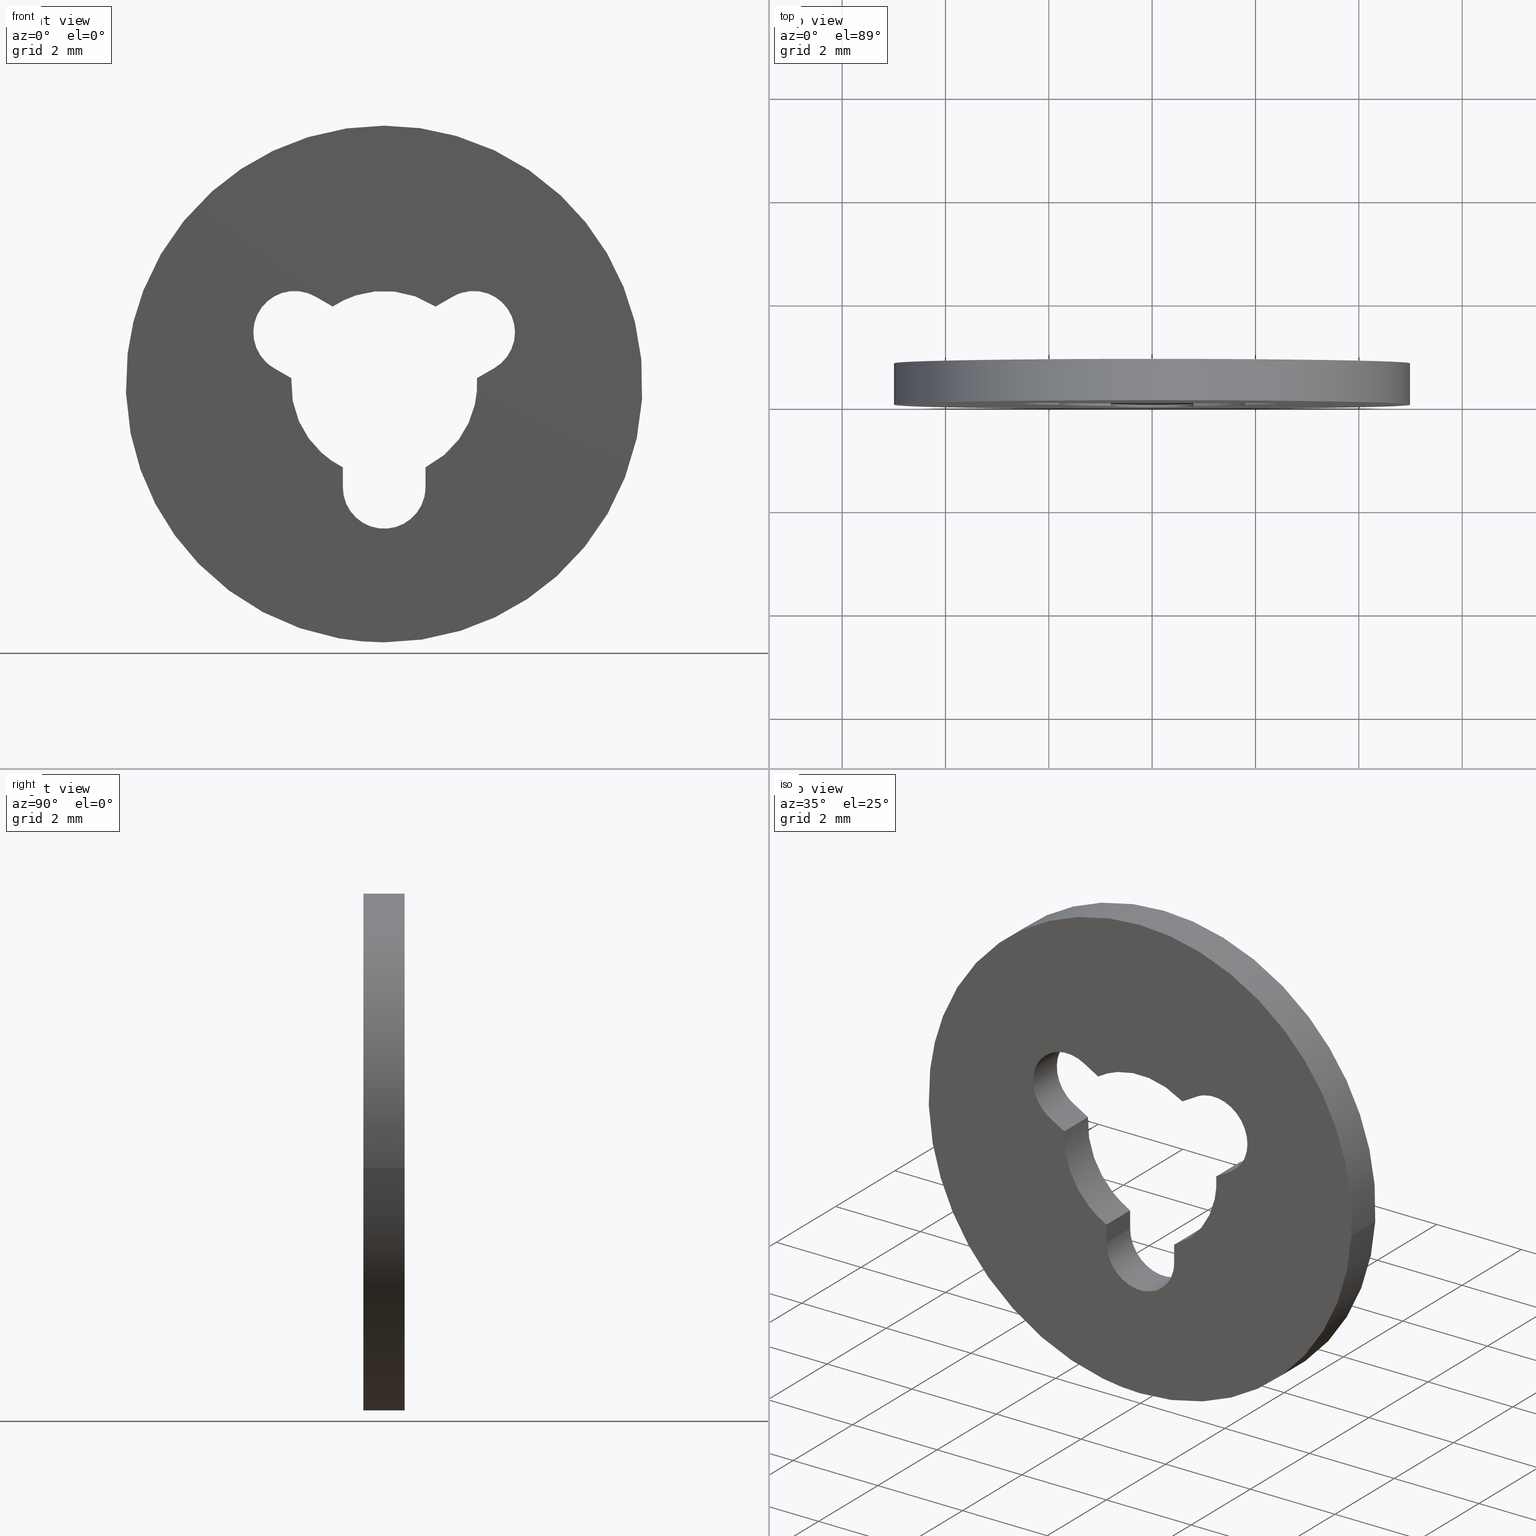
[diagram: canonical four-view strip — front | top / right | iso, engineering-drawing reading convention]
A machine part, canonical four-view strip (front | top / right | iso — engineering-drawing reading convention). The complete STEP part file that produces these views, byte-faithful:
ISO-10303-21;
HEADER;
/****************************************************************
 * Generated by software with PDE/Lib inside                    *
 * PDElib Version 4.4.1-0003, patched  Thursday August 19 11:58 *
 * International Technegroup Inc. (www.iti-oh.com)              *
 ****************************************************************/
FILE_DESCRIPTION((''),'2;1');
FILE_NAME('','2005-07-15T17:45:21',(''),(''),'','CADfix','');
FILE_SCHEMA(('AUTOMOTIVE_DESIGN'));
ENDSEC;
DATA;
#5=APPLICATION_CONTEXT('automotive design');
#6=APPLICATION_PROTOCOL_DEFINITION('Draft International Standard','automotive_design',1998,#5);
#7=PRODUCT_CONTEXT('None',#5,'mechanical');
#8=PRODUCT('washer','','None',(#7));
#9=PRODUCT_RELATED_PRODUCT_CATEGORY('part','description',(#8));
#10=PRODUCT_DEFINITION_FORMATION('None','None',#8);
#11=PRODUCT_DEFINITION_CONTEXT('part definition',#5,'design');
#12=PRODUCT_DEFINITION('None','None',#10,#11);
#18=(NAMED_UNIT(*)PLANE_ANGLE_UNIT()SI_UNIT($,.RADIAN.));
#19=DIMENSIONAL_EXPONENTS(0.0,0.0,0.0,0.0,0.0,0.0,0.0);
#20=PLANE_ANGLE_MEASURE_WITH_UNIT(PLANE_ANGLE_MEASURE(0.017453292500000),#18);
#24=(CONVERSION_BASED_UNIT('DEGREE',#20)NAMED_UNIT(#19)PLANE_ANGLE_UNIT());
#28=(NAMED_UNIT(*)SI_UNIT($,.STERADIAN.)SOLID_ANGLE_UNIT());
#32=(LENGTH_UNIT()NAMED_UNIT(*)SI_UNIT(.MILLI.,.METRE.));
#34=UNCERTAINTY_MEASURE_WITH_UNIT(LENGTH_MEASURE(0.001000000000000),#32,'DISTANCE_ACCURACY_VALUE','');
#36=(GEOMETRIC_REPRESENTATION_CONTEXT(3)GLOBAL_UNCERTAINTY_ASSIGNED_CONTEXT((#34))GLOBAL_UNIT_ASSIGNED_CONTEXT((#24,#28,#32))REPRESENTATION_CONTEXT('None','None'));
#37=AXIS2_PLACEMENT_3D('',#38,#39,#40);
#38=CARTESIAN_POINT('',(0.0,0.0,0.0));
#39=DIRECTION('',(0.0,0.0,1.0));
#40=DIRECTION('',(1.0,0.0,0.0));
#41=ADVANCED_BREP_SHAPE_REPRESENTATION('',(#37,#805),#36);
#42=PRODUCT_DEFINITION_SHAPE('','',#12);
#43=SHAPE_DEFINITION_REPRESENTATION(#42,#41);
#44=CARTESIAN_POINT('',(-4.965047631818332,0.820000000000024,0.590171173283792));
#45=CARTESIAN_POINT('',(-4.981938077243028,0.820000000000024,0.448073643189888));
#46=CARTESIAN_POINT('',(-4.990673992109334,0.820000000000024,0.305242697674285));
#47=CARTESIAN_POINT('',(-5.295916689783620,0.820000000000024,-4.685431294435048));
#48=CARTESIAN_POINT('',(-0.305242697674285,0.820000000000024,-4.990673992109334));
#49=CARTESIAN_POINT('',(4.685431294435048,0.820000000000024,-5.295916689783620));
#50=CARTESIAN_POINT('',(4.990673992109334,0.820000000000024,-0.305242697674285));
#51=CARTESIAN_POINT('',(-4.965047631818332,-0.020500000000001,0.590171173283792));
#52=CARTESIAN_POINT('',(-4.981938077243028,-0.020500000000001,0.448073643189888));
#53=CARTESIAN_POINT('',(-4.990673992109334,-0.020500000000001,0.305242697674285));
#54=CARTESIAN_POINT('',(-5.295916689783620,-0.020500000000001,-4.685431294435048));
#55=CARTESIAN_POINT('',(-0.305242697674285,-0.020500000000001,-4.990673992109334));
#56=CARTESIAN_POINT('',(4.685431294435048,-0.020500000000001,-5.295916689783620));
#57=CARTESIAN_POINT('',(4.990673992109334,-0.020500000000001,-0.305242697674285));
#65=(BOUNDED_SURFACE()B_SPLINE_SURFACE(2,1,((#44,#51),(#45,#52),(#46,#53),(#47,#54),(#48,#55),(#49,#56),(#50,#57)),.UNSPECIFIED.,.F.,.F.,.U.)B_SPLINE_SURFACE_WITH_KNOTS((3,2,2,3),(2,2),(0.0,0.331370849898476,8.615642097360375,16.899913344822270),(0.0,1.0),.UNSPECIFIED.)GEOMETRIC_REPRESENTATION_ITEM()RATIONAL_B_SPLINE_SURFACE(((0.977505800795127,0.977505800795127),(0.988284271247462,0.988284271247462),(1.0,1.0),(0.707106781186548,0.707106781186548),(1.0,1.0),(0.707106781186548,0.707106781186548),(1.0,1.0)))REPRESENTATION_ITEM('')SURFACE());
#66=CARTESIAN_POINT('',(-4.965048007634929,3.045997E-014,0.590168011561354));
#67=VERTEX_POINT('',#66);
#68=CARTESIAN_POINT('',(0.0,0.0,-5.0));
#69=VERTEX_POINT('',#68);
#70=CARTESIAN_POINT('',(-4.965048007634929,3.045997E-014,0.590168011561354));
#71=CARTESIAN_POINT('',(-5.000000000000001,0.0,0.296119000685819));
#72=CARTESIAN_POINT('',(-5.0,0.0,0.0));
#73=CARTESIAN_POINT('',(-5.000000000000001,0.0,-5.000000000000001));
#74=CARTESIAN_POINT('',(0.0,0.0,-5.0));
#82=(BOUNDED_CURVE()B_SPLINE_CURVE(2,(#70,#71,#72,#73,#74),.UNSPECIFIED.,.F.,.U.)B_SPLINE_CURVE_WITH_KNOTS((3,2,3),(0.229562581136241,0.250000000000000,0.500000000000000),.UNSPECIFIED.)CURVE()GEOMETRIC_REPRESENTATION_ITEM()RATIONAL_B_SPLINE_CURVE((0.956026965128767,0.976056074419019,1.0,0.707106781186548,1.0))REPRESENTATION_ITEM(''));
#83=EDGE_CURVE('',#67,#69,#82,.T.);
#84=ORIENTED_EDGE('',*,*,#83,.F.);
#85=CARTESIAN_POINT('',(-4.965048002999415,0.800000000000023,0.590168050559857));
#86=VERTEX_POINT('',#85);
#87=CARTESIAN_POINT('',(-4.965048002999415,0.800000000000023,0.590168050559857));
#88=CARTESIAN_POINT('',(-4.965048007634929,3.045997E-014,0.590168011561354));
#89=QUASI_UNIFORM_CURVE('',1,(#87,#88),.UNSPECIFIED.,.F.,.U.);
#90=EDGE_CURVE('',#86,#67,#89,.T.);
#91=ORIENTED_EDGE('',*,*,#90,.F.);
#92=CARTESIAN_POINT('',(0.0,0.800000000000023,-5.0));
#93=VERTEX_POINT('',#92);
#94=CARTESIAN_POINT('',(-4.965048002999415,0.800000000000023,0.590168050559856));
#95=CARTESIAN_POINT('',(-5.0,0.800000000000023,0.296119020391210));
#96=CARTESIAN_POINT('',(-5.0,0.800000000000023,0.0));
#97=CARTESIAN_POINT('',(-5.000000000000001,0.800000000000023,-5.000000000000001));
#98=CARTESIAN_POINT('',(0.0,0.800000000000023,-5.0));
#106=(BOUNDED_CURVE()B_SPLINE_CURVE(2,(#94,#95,#96,#97,#98),.UNSPECIFIED.,.F.,.U.)B_SPLINE_CURVE_WITH_KNOTS((3,2,3),(0.229562579808786,0.250000000000000,0.500000000000000),.UNSPECIFIED.)CURVE()GEOMETRIC_REPRESENTATION_ITEM()RATIONAL_B_SPLINE_CURVE((0.956026962526900,0.976056072863809,1.0,0.707106781186548,1.0))REPRESENTATION_ITEM(''));
#107=EDGE_CURVE('',#86,#93,#106,.T.);
#108=ORIENTED_EDGE('',*,*,#107,.T.);
#109=CARTESIAN_POINT('',(4.990674099992546,0.800000000000023,-0.305240933789139));
#110=VERTEX_POINT('',#109);
#111=CARTESIAN_POINT('',(0.0,0.800000000000023,-5.0));
#112=CARTESIAN_POINT('',(4.703532000033385,0.800000000000023,-5.000000000000001));
#113=CARTESIAN_POINT('',(4.990674099992546,0.800000000000023,-0.305240933789139));
#121=(BOUNDED_CURVE()B_SPLINE_CURVE(2,(#111,#112,#113),.UNSPECIFIED.,.F.,.U.)B_SPLINE_CURVE_WITH_KNOTS((3,3),(0.500000000000000,0.739333023226263),.UNSPECIFIED.)CURVE()GEOMETRIC_REPRESENTATION_ITEM()RATIONAL_B_SPLINE_CURVE((1.0,0.719603921835620,0.976072172374189))REPRESENTATION_ITEM(''));
#122=EDGE_CURVE('',#93,#110,#121,.T.);
#123=ORIENTED_EDGE('',*,*,#122,.T.);
#124=CARTESIAN_POINT('',(4.990674101339240,2.014708E-014,-0.305240911770624));
#125=VERTEX_POINT('',#124);
#126=CARTESIAN_POINT('',(4.990674099992546,0.800000000000023,-0.305240933789139));
#127=CARTESIAN_POINT('',(4.990674101339240,2.014708E-014,-0.305240911770624));
#128=QUASI_UNIFORM_CURVE('',1,(#126,#127),.UNSPECIFIED.,.F.,.U.);
#129=EDGE_CURVE('',#110,#125,#128,.T.);
#130=ORIENTED_EDGE('',*,*,#129,.T.);
#131=CARTESIAN_POINT('',(0.0,0.0,-5.0));
#132=CARTESIAN_POINT('',(4.703532020823824,0.0,-4.999999999999999));
#133=CARTESIAN_POINT('',(4.990674101339240,2.014708E-014,-0.305240911770624));
#141=(BOUNDED_CURVE()B_SPLINE_CURVE(2,(#131,#132,#133),.UNSPECIFIED.,.F.,.U.)B_SPLINE_CURVE_WITH_KNOTS((3,3),(0.500000000000000,0.739333023987528),.UNSPECIFIED.)CURVE()GEOMETRIC_REPRESENTATION_ITEM()RATIONAL_B_SPLINE_CURVE((1.0,0.719603920943743,0.976072174005725))REPRESENTATION_ITEM(''));
#142=EDGE_CURVE('',#69,#125,#141,.T.);
#143=ORIENTED_EDGE('',*,*,#142,.F.);
#144=EDGE_LOOP('',(#84,#91,#108,#123,#130,#143));
#145=FACE_OUTER_BOUND('',#144,.T.);
#146=ADVANCED_FACE('',(#145),#65,.T.);
#147=CARTESIAN_POINT('',(4.990673992109334,0.820000000000024,-0.305242697674285));
#148=CARTESIAN_POINT('',(5.295916689783620,0.820000000000024,4.685431294435048));
#149=CARTESIAN_POINT('',(0.305242697674285,0.820000000000024,4.990673992109334));
#150=CARTESIAN_POINT('',(-4.407717454197504,0.820000000000024,5.278930983662638));
#151=CARTESIAN_POINT('',(-4.965047631818332,0.820000000000024,0.590171173283792));
#152=CARTESIAN_POINT('',(4.990673992109334,-0.020500000000001,-0.305242697674285));
#153=CARTESIAN_POINT('',(5.295916689783620,-0.020500000000001,4.685431294435048));
#154=CARTESIAN_POINT('',(0.305242697674285,-0.020500000000001,4.990673992109334));
#155=CARTESIAN_POINT('',(-4.407717454197504,-0.020500000000001,5.278930983662638));
#156=CARTESIAN_POINT('',(-4.965047631818332,-0.020500000000001,0.590171173283792));
#164=(BOUNDED_SURFACE()B_SPLINE_SURFACE(2,1,((#147,#152),(#148,#153),(#149,#154),(#150,#155),(#151,#156)),.UNSPECIFIED.,.F.,.F.,.U.)B_SPLINE_SURFACE_WITH_KNOTS((3,2,3),(2,2),(0.0,8.284271247461899,16.237171645025320),(0.0,1.0),.UNSPECIFIED.)GEOMETRIC_REPRESENTATION_ITEM()RATIONAL_B_SPLINE_SURFACE(((1.0,1.0),(0.707106781186548,0.707106781186548),(1.0,1.0),(0.718822509939086,0.718822509939086),(0.977505800795127,0.977505800795127)))REPRESENTATION_ITEM('')SURFACE());
#165=CARTESIAN_POINT('',(0.0,0.0,5.0));
#166=VERTEX_POINT('',#165);
#167=CARTESIAN_POINT('',(0.0,0.0,5.0));
#168=CARTESIAN_POINT('',(-4.440875477595059,0.0,5.000000000000001));
#169=CARTESIAN_POINT('',(-4.965048007634929,3.045997E-014,0.590168011561354));
#177=(BOUNDED_CURVE()B_SPLINE_CURVE(2,(#167,#168,#169),.UNSPECIFIED.,.F.,.U.)B_SPLINE_CURVE_WITH_KNOTS((3,3),(0.0,0.229562581136241),.UNSPECIFIED.)CURVE()GEOMETRIC_REPRESENTATION_ITEM()RATIONAL_B_SPLINE_CURVE((1.0,0.731050706767529,0.956026965128767))REPRESENTATION_ITEM(''));
#178=EDGE_CURVE('',#166,#67,#177,.T.);
#179=ORIENTED_EDGE('',*,*,#178,.F.);
#180=CARTESIAN_POINT('',(4.990674101339240,2.014708E-014,-0.305240911770624));
#181=CARTESIAN_POINT('',(5.000000000000001,0.0,-0.152762921037389));
#182=CARTESIAN_POINT('',(5.0,0.0,0.0));
#183=CARTESIAN_POINT('',(5.000000000000001,0.0,5.000000000000001));
#184=CARTESIAN_POINT('',(0.0,0.0,5.0));
#192=(BOUNDED_CURVE()B_SPLINE_CURVE(2,(#180,#181,#182,#183,#184),.UNSPECIFIED.,.F.,.U.)B_SPLINE_CURVE_WITH_KNOTS((3,2,3),(0.739333023987528,0.750000000000000,1.0),.UNSPECIFIED.)CURVE()GEOMETRIC_REPRESENTATION_ITEM()RATIONAL_B_SPLINE_CURVE((0.976072174005725,0.987502860242804,1.0,0.707106781186548,1.0))REPRESENTATION_ITEM(''));
#193=EDGE_CURVE('',#125,#166,#192,.T.);
#194=ORIENTED_EDGE('',*,*,#193,.F.);
#195=ORIENTED_EDGE('',*,*,#129,.F.);
#196=CARTESIAN_POINT('',(0.0,0.800000000000023,5.0));
#197=VERTEX_POINT('',#196);
#198=CARTESIAN_POINT('',(4.990674099992546,0.800000000000023,-0.305240933789139));
#199=CARTESIAN_POINT('',(4.999999999999999,0.800000000000023,-0.152762932077514));
#200=CARTESIAN_POINT('',(5.0,0.800000000000023,0.0));
#201=CARTESIAN_POINT('',(5.000000000000001,0.800000000000023,5.000000000000001));
#202=CARTESIAN_POINT('',(0.0,0.800000000000023,5.0));
#210=(BOUNDED_CURVE()B_SPLINE_CURVE(2,(#198,#199,#200,#201,#202),.UNSPECIFIED.,.F.,.U.)B_SPLINE_CURVE_WITH_KNOTS((3,2,3),(0.739333023226263,0.750000000000000,1.0),.UNSPECIFIED.)CURVE()GEOMETRIC_REPRESENTATION_ITEM()RATIONAL_B_SPLINE_CURVE((0.976072172374189,0.987502859350927,1.0,0.707106781186548,1.0))REPRESENTATION_ITEM(''));
#211=EDGE_CURVE('',#110,#197,#210,.T.);
#212=ORIENTED_EDGE('',*,*,#211,.T.);
#213=CARTESIAN_POINT('',(0.0,0.800000000000023,5.0));
#214=CARTESIAN_POINT('',(-4.440875442468178,0.800000000000023,5.0));
#215=CARTESIAN_POINT('',(-4.965048002999415,0.800000000000023,0.590168050559856));
#223=(BOUNDED_CURVE()B_SPLINE_CURVE(2,(#213,#214,#215),.UNSPECIFIED.,.F.,.U.)B_SPLINE_CURVE_WITH_KNOTS((3,3),(0.0,0.229562579808786),.UNSPECIFIED.)CURVE()GEOMETRIC_REPRESENTATION_ITEM()RATIONAL_B_SPLINE_CURVE((1.0,0.731050708322738,0.956026962526900))REPRESENTATION_ITEM(''));
#224=EDGE_CURVE('',#197,#86,#223,.T.);
#225=ORIENTED_EDGE('',*,*,#224,.T.);
#226=ORIENTED_EDGE('',*,*,#90,.T.);
#227=EDGE_LOOP('',(#179,#194,#195,#212,#225,#226));
#228=FACE_OUTER_BOUND('',#227,.T.);
#229=ADVANCED_FACE('',(#228),#164,.T.);
#230=CARTESIAN_POINT('',(0.799238577265486,0.820000000000024,-1.965104490107732));
#231=CARTESIAN_POINT('',(0.799238577265486,-0.020500000000001,-1.965104490107732));
#232=CARTESIAN_POINT('',(0.836333596761906,0.820000000000024,-2.814720119668256));
#233=CARTESIAN_POINT('',(0.836333596761906,-0.020500000000001,-2.814720119668256));
#234=CARTESIAN_POINT('',(-0.013961925149828,0.820000000000024,-2.799878156125113));
#235=CARTESIAN_POINT('',(-0.013961925149828,-0.020500000000001,-2.799878156125113));
#236=CARTESIAN_POINT('',(-0.864257447061562,0.820000000000024,-2.785036192581970));
#237=CARTESIAN_POINT('',(-0.864257447061562,-0.020500000000001,-2.785036192581970));
#238=CARTESIAN_POINT('',(-0.797533866986502,0.820000000000024,-1.937232723417723));
#239=CARTESIAN_POINT('',(-0.797533866986502,-0.020500000000001,-1.937232723417723));
#247=(BOUNDED_SURFACE()B_SPLINE_SURFACE(1,2,((#230,#232,#234,#236,#238),(#231,#233,#235,#237,#239)),.UNSPECIFIED.,.F.,.F.,.U.)B_SPLINE_SURFACE_WITH_KNOTS((2,2),(3,2,3),(0.0,1.0),(0.0,1.0,2.0),.UNSPECIFIED.)GEOMETRIC_REPRESENTATION_ITEM()RATIONAL_B_SPLINE_SURFACE(((1.0,0.685182990326359,1.0,0.685182990326359,1.0),(1.0,0.685182990326359,1.0,0.685182990326359,1.0)))REPRESENTATION_ITEM('')SURFACE());
#248=CARTESIAN_POINT('',(-0.800000000000000,0.0,-2.0));
#249=VERTEX_POINT('',#248);
#250=CARTESIAN_POINT('',(0.799999999999988,0.0,-1.999999860373660));
#251=VERTEX_POINT('',#250);
#252=CARTESIAN_POINT('',(-0.800000000000000,0.0,-2.0));
#253=CARTESIAN_POINT('',(-0.800000000000000,0.0,-2.461880246379777));
#254=CARTESIAN_POINT('',(-0.399999959693347,0.0,-2.692820346298606));
#255=CARTESIAN_POINT('',(0.000000080613306,0.0,-2.923760446217436));
#256=CARTESIAN_POINT('',(0.400000080613302,0.0,-2.692820276485433));
#257=CARTESIAN_POINT('',(0.800000080613298,0.0,-2.461880106753430));
#258=CARTESIAN_POINT('',(0.799999999999988,0.0,-1.999999860373660));
#266=(BOUNDED_CURVE()B_SPLINE_CURVE(2,(#252,#253,#254,#255,#256,#257,#258),.UNSPECIFIED.,.F.,.U.)B_SPLINE_CURVE_WITH_KNOTS((3,2,2,3),(0.0,0.333333333333333,0.666666666666667,1.0),.UNSPECIFIED.)CURVE()GEOMETRIC_REPRESENTATION_ITEM()RATIONAL_B_SPLINE_CURVE((1.0,0.866025389240028,1.0,0.866025389240028,1.0,0.866025389240028,1.0))REPRESENTATION_ITEM(''));
#267=EDGE_CURVE('',#249,#251,#266,.T.);
#268=ORIENTED_EDGE('',*,*,#267,.T.);
#269=CARTESIAN_POINT('',(0.799999999999988,0.800000000000023,-1.999999860373660));
#270=VERTEX_POINT('',#269);
#271=CARTESIAN_POINT('',(0.799999999999988,0.800000000000023,-1.999999860373660));
#272=CARTESIAN_POINT('',(0.799999999999988,0.0,-1.999999860373660));
#273=QUASI_UNIFORM_CURVE('',1,(#271,#272),.UNSPECIFIED.,.F.,.U.);
#274=EDGE_CURVE('',#270,#251,#273,.T.);
#275=ORIENTED_EDGE('',*,*,#274,.F.);
#276=CARTESIAN_POINT('',(-0.800000000000000,0.800000000000023,-2.0));
#277=VERTEX_POINT('',#276);
#278=CARTESIAN_POINT('',(-0.800000000000000,0.800000000000023,-2.0));
#279=CARTESIAN_POINT('',(-0.800000000000000,0.800000000000023,-2.461880246379777));
#280=CARTESIAN_POINT('',(-0.399999959693347,0.800000000000023,-2.692820346298606));
#281=CARTESIAN_POINT('',(0.000000080613306,0.800000000000023,-2.923760446217436));
#282=CARTESIAN_POINT('',(0.400000080613302,0.800000000000023,-2.692820276485433));
#283=CARTESIAN_POINT('',(0.800000080613298,0.800000000000023,-2.461880106753430));
#284=CARTESIAN_POINT('',(0.799999999999988,0.800000000000023,-1.999999860373660));
#292=(BOUNDED_CURVE()B_SPLINE_CURVE(2,(#278,#279,#280,#281,#282,#283,#284),.UNSPECIFIED.,.F.,.U.)B_SPLINE_CURVE_WITH_KNOTS((3,2,2,3),(0.0,0.333333333333333,0.666666666666667,1.0),.UNSPECIFIED.)CURVE()GEOMETRIC_REPRESENTATION_ITEM()RATIONAL_B_SPLINE_CURVE((1.0,0.866025389240028,1.0,0.866025389240028,1.0,0.866025389240028,1.0))REPRESENTATION_ITEM(''));
#293=EDGE_CURVE('',#277,#270,#292,.T.);
#294=ORIENTED_EDGE('',*,*,#293,.F.);
#295=CARTESIAN_POINT('',(-0.800000000000000,0.800000000000023,-2.0));
#296=CARTESIAN_POINT('',(-0.800000000000000,0.0,-2.0));
#297=QUASI_UNIFORM_CURVE('',1,(#295,#296),.UNSPECIFIED.,.F.,.U.);
#298=EDGE_CURVE('',#277,#249,#297,.T.);
#299=ORIENTED_EDGE('',*,*,#298,.T.);
#300=EDGE_LOOP('',(#268,#275,#294,#299));
#301=FACE_OUTER_BOUND('',#300,.T.);
#302=ADVANCED_FACE('',(#301),#247,.F.);
#303=CARTESIAN_POINT('',(-0.800000000000000,-0.039959998449446,-2.019358044343353));
#304=CARTESIAN_POINT('',(-0.800000000000000,-0.039959998449446,-1.593093494921497));
#305=CARTESIAN_POINT('',(-0.800000000000000,0.839960019907141,-2.019358044343353));
#306=CARTESIAN_POINT('',(-0.800000000000000,0.839960019907141,-1.593093494921497));
#307=B_SPLINE_SURFACE_WITH_KNOTS('',1,1,((#303,#305),(#304,#306)),.UNSPECIFIED.,.F.,.F.,.U.,(2,2),(2,2),(0.0,0.426264549421857),(0.041708334948495,0.958291687403247),.UNSPECIFIED.);
#308=CARTESIAN_POINT('',(-0.800000000000000,0.0,-1.612451549659710));
#309=VERTEX_POINT('',#308);
#310=CARTESIAN_POINT('',(-0.800000000000000,0.0,-1.612451549659710));
#311=CARTESIAN_POINT('',(-0.800000000000000,0.0,-2.0));
#312=QUASI_UNIFORM_CURVE('',1,(#310,#311),.UNSPECIFIED.,.F.,.U.);
#313=EDGE_CURVE('',#309,#249,#312,.T.);
#314=ORIENTED_EDGE('',*,*,#313,.T.);
#315=ORIENTED_EDGE('',*,*,#298,.F.);
#316=CARTESIAN_POINT('',(-0.800000000000000,0.800000000000023,-1.612451549659710));
#317=VERTEX_POINT('',#316);
#318=CARTESIAN_POINT('',(-0.800000000000000,0.800000000000023,-1.612451549659710));
#319=CARTESIAN_POINT('',(-0.800000000000000,0.800000000000023,-2.0));
#320=QUASI_UNIFORM_CURVE('',1,(#318,#319),.UNSPECIFIED.,.F.,.U.);
#321=EDGE_CURVE('',#317,#277,#320,.T.);
#322=ORIENTED_EDGE('',*,*,#321,.F.);
#323=CARTESIAN_POINT('',(-0.800000000000000,0.800000000000023,-1.612451549659710));
#324=CARTESIAN_POINT('',(-0.800000000000000,0.0,-1.612451549659710));
#325=QUASI_UNIFORM_CURVE('',1,(#323,#324),.UNSPECIFIED.,.F.,.U.);
#326=EDGE_CURVE('',#317,#309,#325,.T.);
#327=ORIENTED_EDGE('',*,*,#326,.T.);
#328=EDGE_LOOP('',(#314,#315,#322,#327));
#329=FACE_OUTER_BOUND('',#328,.T.);
#330=ADVANCED_FACE('',(#329),#307,.F.);
#331=CARTESIAN_POINT('',(-0.735352100026733,0.820000000000024,-1.642941657207057));
#332=CARTESIAN_POINT('',(-0.735352100026733,-0.020500000000001,-1.642941657207057));
#333=CARTESIAN_POINT('',(-1.943554409577728,0.820000000000024,-1.102171325109073));
#334=CARTESIAN_POINT('',(-1.943554409577728,-0.020500000000001,-1.102171325109073));
#335=CARTESIAN_POINT('',(-1.787437346550587,0.820000000000024,0.212291620551055));
#336=CARTESIAN_POINT('',(-1.787437346550587,-0.020500000000001,0.212291620551055));
#344=(BOUNDED_SURFACE()B_SPLINE_SURFACE(1,2,((#331,#333,#335),(#332,#334,#336)),.UNSPECIFIED.,.F.,.F.,.U.)B_SPLINE_SURFACE_WITH_KNOTS((2,2),(3,3),(0.0,1.0),(0.0,2.362383615130197),.UNSPECIFIED.)GEOMETRIC_REPRESENTATION_ITEM()RATIONAL_B_SPLINE_SURFACE(((1.0,0.802530900722325,0.992359931106881),(1.0,0.802530900722325,0.992359931106881)))REPRESENTATION_ITEM('')SURFACE());
#345=CARTESIAN_POINT('',(-1.796423492117540,0.0,0.113413566067874));
#346=VERTEX_POINT('',#345);
#347=CARTESIAN_POINT('',(-1.796423492117537,0.0,0.113413566067874));
#348=CARTESIAN_POINT('',(-1.871810468826477,0.0,-1.080684641536401));
#349=CARTESIAN_POINT('',(-0.800000000000000,0.0,-1.612451549659710));
#357=(BOUNDED_CURVE()B_SPLINE_CURVE(2,(#347,#348,#349),.UNSPECIFIED.,.F.,.U.)CURVE()GEOMETRIC_REPRESENTATION_ITEM()QUASI_UNIFORM_CURVE()RATIONAL_B_SPLINE_CURVE((1.0,0.832802137488904,1.0))REPRESENTATION_ITEM(''));
#358=EDGE_CURVE('',#346,#309,#357,.T.);
#359=ORIENTED_EDGE('',*,*,#358,.T.);
#360=ORIENTED_EDGE('',*,*,#326,.F.);
#361=CARTESIAN_POINT('',(-1.796423492117540,0.800000000000023,0.113413566067874));
#362=VERTEX_POINT('',#361);
#363=CARTESIAN_POINT('',(-1.796423492117537,0.800000000000023,0.113413566067874));
#364=CARTESIAN_POINT('',(-1.871810468826477,0.800000000000023,-1.080684641536401));
#365=CARTESIAN_POINT('',(-0.800000000000000,0.800000000000023,-1.612451549659710));
#373=(BOUNDED_CURVE()B_SPLINE_CURVE(2,(#363,#364,#365),.UNSPECIFIED.,.F.,.U.)CURVE()GEOMETRIC_REPRESENTATION_ITEM()QUASI_UNIFORM_CURVE()RATIONAL_B_SPLINE_CURVE((1.0,0.832802137488904,1.0))REPRESENTATION_ITEM(''));
#374=EDGE_CURVE('',#362,#317,#373,.T.);
#375=ORIENTED_EDGE('',*,*,#374,.F.);
#376=CARTESIAN_POINT('',(-1.796423492117540,0.800000000000023,0.113413566067874));
#377=CARTESIAN_POINT('',(-1.796423492117540,0.0,0.113413566067874));
#378=QUASI_UNIFORM_CURVE('',1,(#376,#377),.UNSPECIFIED.,.F.,.U.);
#379=EDGE_CURVE('',#362,#346,#378,.T.);
#380=ORIENTED_EDGE('',*,*,#379,.T.);
#381=EDGE_LOOP('',(#359,#360,#375,#380));
#382=FACE_OUTER_BOUND('',#381,.T.);
#383=ADVANCED_FACE('',(#382),#344,.F.);
#384=CARTESIAN_POINT('',(-1.780104787967390,-0.039959998449446,0.103989952050298));
#385=CARTESIAN_POINT('',(-2.139442036711903,-0.039959998449446,0.311497576623255));
#386=CARTESIAN_POINT('',(-1.780104787967390,0.839960019907141,0.103989952050298));
#387=CARTESIAN_POINT('',(-2.139442036711903,0.839960019907141,0.311497576623255));
#388=B_SPLINE_SURFACE_WITH_KNOTS('',1,1,((#384,#386),(#385,#387)),.UNSPECIFIED.,.F.,.F.,.U.,(2,2),(2,2),(0.0,0.414948999988176),(0.041708334948495,0.958291687403247),.UNSPECIFIED.);
#389=CARTESIAN_POINT('',(-2.123123344245450,0.0,0.302073969352699));
#390=VERTEX_POINT('',#389);
#391=CARTESIAN_POINT('',(-2.123123344245450,0.0,0.302073969352699));
#392=CARTESIAN_POINT('',(-1.796423492117540,0.0,0.113413566067874));
#393=QUASI_UNIFORM_CURVE('',1,(#391,#392),.UNSPECIFIED.,.F.,.U.);
#394=EDGE_CURVE('',#390,#346,#393,.T.);
#395=ORIENTED_EDGE('',*,*,#394,.T.);
#396=ORIENTED_EDGE('',*,*,#379,.F.);
#397=CARTESIAN_POINT('',(-2.123123344245450,0.800000000000023,0.302073969352699));
#398=VERTEX_POINT('',#397);
#399=CARTESIAN_POINT('',(-2.123123344245450,0.800000000000023,0.302073969352699));
#400=CARTESIAN_POINT('',(-1.796423492117540,0.800000000000023,0.113413566067874));
#401=QUASI_UNIFORM_CURVE('',1,(#399,#400),.UNSPECIFIED.,.F.,.U.);
#402=EDGE_CURVE('',#398,#362,#401,.T.);
#403=ORIENTED_EDGE('',*,*,#402,.F.);
#404=CARTESIAN_POINT('',(-2.123123344245450,0.800000000000023,0.302073969352699));
#405=CARTESIAN_POINT('',(-2.123123344245450,0.0,0.302073969352699));
#406=QUASI_UNIFORM_CURVE('',1,(#404,#405),.UNSPECIFIED.,.F.,.U.);
#407=EDGE_CURVE('',#398,#390,#406,.T.);
#408=ORIENTED_EDGE('',*,*,#407,.T.);
#409=EDGE_LOOP('',(#395,#396,#403,#408));
#410=FACE_OUTER_BOUND('',#409,.T.);
#411=ADVANCED_FACE('',(#410),#388,.F.);
#412=CARTESIAN_POINT('',(-2.101543604236167,0.820000000000024,0.290413800383952));
#413=CARTESIAN_POINT('',(-2.101543604236167,-0.020500000000001,0.290413800383952));
#414=CARTESIAN_POINT('',(-2.855858767453020,0.820000000000024,0.683173799761309));
#415=CARTESIAN_POINT('',(-2.855858767453020,-0.020500000000001,0.683173799761309));
#416=CARTESIAN_POINT('',(-2.417781505582944,0.820000000000024,1.412104588795622));
#417=CARTESIAN_POINT('',(-2.417781505582944,-0.020500000000001,1.412104588795622));
#418=CARTESIAN_POINT('',(-1.979704243712868,0.820000000000024,2.141035377829935));
#419=CARTESIAN_POINT('',(-1.979704243712868,-0.020500000000001,2.141035377829935));
#420=CARTESIAN_POINT('',(-1.278877034577208,0.820000000000024,1.659275058267507));
#421=CARTESIAN_POINT('',(-1.278877034577208,-0.020500000000001,1.659275058267507));
#429=(BOUNDED_SURFACE()B_SPLINE_SURFACE(1,2,((#412,#414,#416,#418,#420),(#413,#415,#417,#419,#421)),.UNSPECIFIED.,.F.,.F.,.U.)B_SPLINE_SURFACE_WITH_KNOTS((2,2),(3,2,3),(0.0,1.0),(0.0,1.0,2.0),.UNSPECIFIED.)GEOMETRIC_REPRESENTATION_ITEM()RATIONAL_B_SPLINE_SURFACE(((1.0,0.685182990326359,1.0,0.685182990326359,1.0),(1.0,0.685182990326359,1.0,0.685182990326359,1.0)))REPRESENTATION_ITEM('')SURFACE());
#430=CARTESIAN_POINT('',(-1.332000000000000,0.0,1.692800000000000));
#431=VERTEX_POINT('',#430);
#432=CARTESIAN_POINT('',(-1.332000000000000,0.0,1.692799999999999));
#433=CARTESIAN_POINT('',(-1.733986352333857,0.0,1.924936338147488));
#434=CARTESIAN_POINT('',(-2.135008295443140,0.0,1.691137903387843));
#435=CARTESIAN_POINT('',(-2.536030238552423,0.0,1.457339468628198));
#436=CARTESIAN_POINT('',(-2.532058660846635,0.0,0.993157894756795));
#437=CARTESIAN_POINT('',(-2.528087083140846,0.0,0.528976320885393));
#438=CARTESIAN_POINT('',(-2.123123344245450,0.0,0.302073969352700));
#446=(BOUNDED_CURVE()B_SPLINE_CURVE(2,(#432,#433,#434,#435,#436,#437,#438),.UNSPECIFIED.,.F.,.U.)B_SPLINE_CURVE_WITH_KNOTS((3,2,2,3),(0.0,0.333333333333333,0.666666666666667,1.0),.UNSPECIFIED.)CURVE()GEOMETRIC_REPRESENTATION_ITEM()RATIONAL_B_SPLINE_CURVE((1.0,0.864942373379540,1.0,0.864942373379540,1.0,0.864942373379540,1.0))REPRESENTATION_ITEM(''));
#447=EDGE_CURVE('',#431,#390,#446,.T.);
#448=ORIENTED_EDGE('',*,*,#447,.T.);
#449=ORIENTED_EDGE('',*,*,#407,.F.);
#450=CARTESIAN_POINT('',(-1.332000000000000,0.800000000000023,1.692800000000000));
#451=VERTEX_POINT('',#450);
#452=CARTESIAN_POINT('',(-1.332000000000000,0.800000000000023,1.692799999999999));
#453=CARTESIAN_POINT('',(-1.733986352333857,0.800000000000023,1.924936338147488));
#454=CARTESIAN_POINT('',(-2.135008295443140,0.800000000000023,1.691137903387843));
#455=CARTESIAN_POINT('',(-2.536030238552423,0.800000000000023,1.457339468628198));
#456=CARTESIAN_POINT('',(-2.532058660846635,0.800000000000023,0.993157894756795));
#457=CARTESIAN_POINT('',(-2.528087083140846,0.800000000000023,0.528976320885393));
#458=CARTESIAN_POINT('',(-2.123123344245450,0.800000000000023,0.302073969352700));
#466=(BOUNDED_CURVE()B_SPLINE_CURVE(2,(#452,#453,#454,#455,#456,#457,#458),.UNSPECIFIED.,.F.,.U.)B_SPLINE_CURVE_WITH_KNOTS((3,2,2,3),(0.0,0.333333333333333,0.666666666666667,1.0),.UNSPECIFIED.)CURVE()GEOMETRIC_REPRESENTATION_ITEM()RATIONAL_B_SPLINE_CURVE((1.0,0.864942373379540,1.0,0.864942373379540,1.0,0.864942373379540,1.0))REPRESENTATION_ITEM(''));
#467=EDGE_CURVE('',#451,#398,#466,.T.);
#468=ORIENTED_EDGE('',*,*,#467,.F.);
#469=CARTESIAN_POINT('',(-1.332000000000000,0.800000000000023,1.692800000000000));
#470=CARTESIAN_POINT('',(-1.332000000000000,0.0,1.692800000000000));
#471=QUASI_UNIFORM_CURVE('',1,(#469,#470),.UNSPECIFIED.,.F.,.U.);
#472=EDGE_CURVE('',#451,#431,#471,.T.);
#473=ORIENTED_EDGE('',*,*,#472,.T.);
#474=EDGE_LOOP('',(#448,#449,#468,#473));
#475=FACE_OUTER_BOUND('',#474,.T.);
#476=ADVANCED_FACE('',(#475),#429,.F.);
#477=CARTESIAN_POINT('',(-1.348760759931402,-0.039959998449446,1.702478889376355));
#478=CARTESIAN_POINT('',(-0.979689195343868,-0.039959998449446,1.489349958455435));
#479=CARTESIAN_POINT('',(-1.348760759931402,0.839960019907141,1.702478889376355));
#480=CARTESIAN_POINT('',(-0.979689195343868,0.839960019907141,1.489349958455435));
#481=B_SPLINE_SURFACE_WITH_KNOTS('',1,1,((#477,#479),(#478,#480)),.UNSPECIFIED.,.F.,.F.,.U.,(2,2),(2,2),(0.0,0.426189818018433),(0.041708334948495,0.958291687403247),.UNSPECIFIED.);
#482=CARTESIAN_POINT('',(-0.996449955275269,0.0,1.499028847831792));
#483=VERTEX_POINT('',#482);
#484=CARTESIAN_POINT('',(-0.996449955275269,0.0,1.499028847831792));
#485=CARTESIAN_POINT('',(-1.332000000000000,0.0,1.692800000000000));
#486=QUASI_UNIFORM_CURVE('',1,(#484,#485),.UNSPECIFIED.,.F.,.U.);
#487=EDGE_CURVE('',#483,#431,#486,.T.);
#488=ORIENTED_EDGE('',*,*,#487,.T.);
#489=ORIENTED_EDGE('',*,*,#472,.F.);
#490=CARTESIAN_POINT('',(-0.996449955275269,0.800000000000023,1.499028847831792));
#491=VERTEX_POINT('',#490);
#492=CARTESIAN_POINT('',(-0.996449955275269,0.800000000000023,1.499028847831792));
#493=CARTESIAN_POINT('',(-1.332000000000000,0.800000000000023,1.692800000000000));
#494=QUASI_UNIFORM_CURVE('',1,(#492,#493),.UNSPECIFIED.,.F.,.U.);
#495=EDGE_CURVE('',#491,#451,#494,.T.);
#496=ORIENTED_EDGE('',*,*,#495,.F.);
#497=CARTESIAN_POINT('',(-0.996449955275269,0.800000000000023,1.499028847831792));
#498=CARTESIAN_POINT('',(-0.996449955275269,0.0,1.499028847831792));
#499=QUASI_UNIFORM_CURVE('',1,(#497,#498),.UNSPECIFIED.,.F.,.U.);
#500=EDGE_CURVE('',#491,#483,#499,.T.);
#501=ORIENTED_EDGE('',*,*,#500,.T.);
#502=EDGE_LOOP('',(#488,#489,#496,#501));
#503=FACE_OUTER_BOUND('',#502,.T.);
#504=ADVANCED_FACE('',(#503),#481,.F.);
#505=CARTESIAN_POINT('',(-1.055134496521159,0.820000000000024,1.458317933185709));
#506=CARTESIAN_POINT('',(-1.055134496521159,-0.020500000000001,1.458317933185709));
#507=CARTESIAN_POINT('',(0.017299116962219,0.820000000000023,2.234254150566814));
#508=CARTESIAN_POINT('',(0.017299116962219,-0.020500000000001,2.234254150566814));
#509=CARTESIAN_POINT('',(1.077589222484539,0.820000000000024,1.441804933957838));
#510=CARTESIAN_POINT('',(1.077589222484539,-0.020500000000001,1.441804933957838));
#518=(BOUNDED_SURFACE()B_SPLINE_SURFACE(1,2,((#505,#507,#509),(#506,#508,#510)),.UNSPECIFIED.,.F.,.F.,.U.)B_SPLINE_SURFACE_WITH_KNOTS((2,2),(3,3),(0.0,1.0),(0.0,2.362386601066148),.UNSPECIFIED.)GEOMETRIC_REPRESENTATION_ITEM()RATIONAL_B_SPLINE_SURFACE(((1.0,0.802530652186787,0.992360408946918),(1.0,0.802530652186787,0.992360408946918)))REPRESENTATION_ITEM('')SURFACE());
#519=CARTESIAN_POINT('',(0.996449962194055,0.0,1.499028843232666));
#520=VERTEX_POINT('',#519);
#521=CARTESIAN_POINT('',(0.996449962194055,0.0,1.499028843232666));
#522=CARTESIAN_POINT('',(4.987982E-009,0.0,2.161399368435529));
#523=CARTESIAN_POINT('',(-0.996449955275270,0.0,1.499028847831793));
#531=(BOUNDED_CURVE()B_SPLINE_CURVE(2,(#521,#522,#523),.UNSPECIFIED.,.F.,.U.)CURVE()GEOMETRIC_REPRESENTATION_ITEM()QUASI_UNIFORM_CURVE()RATIONAL_B_SPLINE_CURVE((1.0,0.832793803073461,1.0))REPRESENTATION_ITEM(''));
#532=EDGE_CURVE('',#520,#483,#531,.T.);
#533=ORIENTED_EDGE('',*,*,#532,.T.);
#534=ORIENTED_EDGE('',*,*,#500,.F.);
#535=CARTESIAN_POINT('',(0.996449962194055,0.800000000000023,1.499028843232666));
#536=VERTEX_POINT('',#535);
#537=CARTESIAN_POINT('',(0.996449962194055,0.800000000000023,1.499028843232666));
#538=CARTESIAN_POINT('',(4.987982E-009,0.800000000000023,2.161399368435529));
#539=CARTESIAN_POINT('',(-0.996449955275270,0.800000000000023,1.499028847831793));
#547=(BOUNDED_CURVE()B_SPLINE_CURVE(2,(#537,#538,#539),.UNSPECIFIED.,.F.,.U.)CURVE()GEOMETRIC_REPRESENTATION_ITEM()QUASI_UNIFORM_CURVE()RATIONAL_B_SPLINE_CURVE((1.0,0.832793803073461,1.0))REPRESENTATION_ITEM(''));
#548=EDGE_CURVE('',#536,#491,#547,.T.);
#549=ORIENTED_EDGE('',*,*,#548,.F.);
#550=CARTESIAN_POINT('',(0.996449962194055,0.800000000000023,1.499028843232666));
#551=CARTESIAN_POINT('',(0.996449962194055,0.0,1.499028843232666));
#552=QUASI_UNIFORM_CURVE('',1,(#550,#551),.UNSPECIFIED.,.F.,.U.);
#553=EDGE_CURVE('',#536,#520,#552,.T.);
#554=ORIENTED_EDGE('',*,*,#553,.T.);
#555=EDGE_LOOP('',(#533,#534,#549,#554));
#556=FACE_OUTER_BOUND('',#555,.T.);
#557=ADVANCED_FACE('',(#556),#518,.F.);
#558=CARTESIAN_POINT('',(0.979912061014087,-0.039959998449446,1.489481493668539));
#559=CARTESIAN_POINT('',(1.344076345985506,-0.039959998449446,1.699713958450963));
#560=CARTESIAN_POINT('',(0.979912061014087,0.839960019907141,1.489481493668539));
#561=CARTESIAN_POINT('',(1.344076345985506,0.839960019907141,1.699713958450963));
#562=B_SPLINE_SURFACE_WITH_KNOTS('',1,1,((#558,#560),(#559,#561)),.UNSPECIFIED.,.F.,.F.,.U.,(2,2),(2,2),(0.0,0.420491754612666),(0.041708334948495,0.958291687403247),.UNSPECIFIED.);
#563=CARTESIAN_POINT('',(1.327538441845376,0.0,1.690166607177930));
#564=VERTEX_POINT('',#563);
#565=CARTESIAN_POINT('',(1.327538441845376,0.0,1.690166607177930));
#566=CARTESIAN_POINT('',(0.996449962194055,0.0,1.499028843232666));
#567=QUASI_UNIFORM_CURVE('',1,(#565,#566),.UNSPECIFIED.,.F.,.U.);
#568=EDGE_CURVE('',#564,#520,#567,.T.);
#569=ORIENTED_EDGE('',*,*,#568,.T.);
#570=ORIENTED_EDGE('',*,*,#553,.F.);
#571=CARTESIAN_POINT('',(1.327538441845376,0.800000000000023,1.690166607177930));
#572=VERTEX_POINT('',#571);
#573=CARTESIAN_POINT('',(1.327538441845376,0.800000000000023,1.690166607177930));
#574=CARTESIAN_POINT('',(0.996449962194055,0.800000000000023,1.499028843232666));
#575=QUASI_UNIFORM_CURVE('',1,(#573,#574),.UNSPECIFIED.,.F.,.U.);
#576=EDGE_CURVE('',#572,#536,#575,.T.);
#577=ORIENTED_EDGE('',*,*,#576,.F.);
#578=CARTESIAN_POINT('',(1.327538441845376,0.800000000000023,1.690166607177930));
#579=CARTESIAN_POINT('',(1.327538441845376,0.0,1.690166607177930));
#580=QUASI_UNIFORM_CURVE('',1,(#578,#579),.UNSPECIFIED.,.F.,.U.);
#581=EDGE_CURVE('',#572,#564,#580,.T.);
#582=ORIENTED_EDGE('',*,*,#581,.T.);
#583=EDGE_LOOP('',(#569,#570,#577,#582));
#584=FACE_OUTER_BOUND('',#583,.T.);
#585=ADVANCED_FACE('',(#584),#562,.F.);
#586=CARTESIAN_POINT('',(1.297818850221913,0.820000000000024,1.671862994179187));
#587=CARTESIAN_POINT('',(1.297818850221913,-0.020500000000001,1.671862994179187));
#588=CARTESIAN_POINT('',(2.012030247187997,0.820000000000024,2.133517452523000));
#589=CARTESIAN_POINT('',(2.012030247187997,-0.020500000000001,2.133517452523000));
#590=CARTESIAN_POINT('',(2.429222064203625,0.820000000000024,1.392454873330013));
#591=CARTESIAN_POINT('',(2.429222064203625,-0.020500000000001,1.392454873330013));
#592=CARTESIAN_POINT('',(2.846413881219253,0.820000000000024,0.651392294137026));
#593=CARTESIAN_POINT('',(2.846413881219253,-0.020500000000001,0.651392294137026));
#594=CARTESIAN_POINT('',(2.081264581983776,0.820000000000024,0.280219412120545));
#595=CARTESIAN_POINT('',(2.081264581983776,-0.020500000000001,0.280219412120545));
#603=(BOUNDED_SURFACE()B_SPLINE_SURFACE(1,2,((#586,#588,#590,#592,#594),(#587,#589,#591,#593,#595)),.UNSPECIFIED.,.F.,.F.,.U.)B_SPLINE_SURFACE_WITH_KNOTS((2,2),(3,2,3),(0.0,1.0),(0.0,1.0,2.0),.UNSPECIFIED.)GEOMETRIC_REPRESENTATION_ITEM()RATIONAL_B_SPLINE_SURFACE(((1.0,0.685182990326359,1.0,0.685182990326359,1.0),(1.0,0.685182990326359,1.0,0.685182990326359,1.0)))REPRESENTATION_ITEM('')SURFACE());
#604=CARTESIAN_POINT('',(2.136661558152790,0.0,0.309833392820983));
#605=VERTEX_POINT('',#604);
#606=CARTESIAN_POINT('',(2.136661558152790,0.0,0.309833392820983));
#607=CARTESIAN_POINT('',(2.535129434593691,0.0,0.543407117324514));
#608=CARTESIAN_POINT('',(2.532082593737129,0.0,1.005277283166134));
#609=CARTESIAN_POINT('',(2.529035752880570,0.0,1.467147449007754));
#610=CARTESIAN_POINT('',(2.127521035583111,0.0,1.695443890345138));
#611=CARTESIAN_POINT('',(1.726006318285654,0.0,1.923740331682522));
#612=CARTESIAN_POINT('',(1.327538441845376,0.0,1.690166607177930));
#620=(BOUNDED_CURVE()B_SPLINE_CURVE(2,(#606,#607,#608,#609,#610,#611,#612),.UNSPECIFIED.,.F.,.U.)B_SPLINE_CURVE_WITH_KNOTS((3,2,2,3),(0.0,0.333333333333333,0.666666666666667,1.0),.UNSPECIFIED.)CURVE()GEOMETRIC_REPRESENTATION_ITEM()RATIONAL_B_SPLINE_CURVE((1.0,0.866025403784217,1.0,0.866025403784217,1.0,0.866025403784217,1.0))REPRESENTATION_ITEM(''));
#621=EDGE_CURVE('',#605,#564,#620,.T.);
#622=ORIENTED_EDGE('',*,*,#621,.T.);
#623=ORIENTED_EDGE('',*,*,#581,.F.);
#624=CARTESIAN_POINT('',(2.136661558152790,0.800000000000023,0.309833392820983));
#625=VERTEX_POINT('',#624);
#626=CARTESIAN_POINT('',(2.136661558152790,0.800000000000023,0.309833392820983));
#627=CARTESIAN_POINT('',(2.535129434593691,0.800000000000023,0.543407117324514));
#628=CARTESIAN_POINT('',(2.532082593737129,0.800000000000023,1.005277283166134));
#629=CARTESIAN_POINT('',(2.529035752880570,0.800000000000023,1.467147449007754));
#630=CARTESIAN_POINT('',(2.127521035583111,0.800000000000023,1.695443890345138));
#631=CARTESIAN_POINT('',(1.726006318285654,0.800000000000023,1.923740331682522));
#632=CARTESIAN_POINT('',(1.327538441845376,0.800000000000023,1.690166607177930));
#640=(BOUNDED_CURVE()B_SPLINE_CURVE(2,(#626,#627,#628,#629,#630,#631,#632),.UNSPECIFIED.,.F.,.U.)B_SPLINE_CURVE_WITH_KNOTS((3,2,2,3),(0.0,0.333333333333333,0.666666666666667,1.0),.UNSPECIFIED.)CURVE()GEOMETRIC_REPRESENTATION_ITEM()RATIONAL_B_SPLINE_CURVE((1.0,0.866025403784217,1.0,0.866025403784217,1.0,0.866025403784217,1.0))REPRESENTATION_ITEM(''));
#641=EDGE_CURVE('',#625,#572,#640,.T.);
#642=ORIENTED_EDGE('',*,*,#641,.F.);
#643=CARTESIAN_POINT('',(2.136661558152790,0.800000000000023,0.309833392820983));
#644=CARTESIAN_POINT('',(2.136661558152790,0.0,0.309833392820983));
#645=QUASI_UNIFORM_CURVE('',1,(#643,#644),.UNSPECIFIED.,.F.,.U.);
#646=EDGE_CURVE('',#625,#605,#645,.T.);
#647=ORIENTED_EDGE('',*,*,#646,.T.);
#648=EDGE_LOOP('',(#622,#623,#642,#647));
#649=FACE_OUTER_BOUND('',#648,.T.);
#650=ADVANCED_FACE('',(#649),#603,.F.);
#651=CARTESIAN_POINT('',(2.153656434125520,-0.039959998449446,0.319644554463863));
#652=CARTESIAN_POINT('',(1.779428567719520,-0.039959998449446,0.103602372427889));
#653=CARTESIAN_POINT('',(2.153656434125520,0.839960019907141,0.319644554463863));
#654=CARTESIAN_POINT('',(1.779428567719520,0.839960019907141,0.103602372427889));
#655=B_SPLINE_SURFACE_WITH_KNOTS('',1,1,((#651,#653),(#652,#654)),.UNSPECIFIED.,.F.,.F.,.U.,(2,2),(2,2),(0.0,0.432111930422723),(0.041708334948495,0.958291687403247),.UNSPECIFIED.);
#656=CARTESIAN_POINT('',(1.796423492363695,0.0,0.113413562168851));
#657=VERTEX_POINT('',#656);
#658=CARTESIAN_POINT('',(1.796423492363695,0.0,0.113413562168851));
#659=CARTESIAN_POINT('',(2.136661558152790,0.0,0.309833392820983));
#660=QUASI_UNIFORM_CURVE('',1,(#658,#659),.UNSPECIFIED.,.F.,.U.);
#661=EDGE_CURVE('',#657,#605,#660,.T.);
#662=ORIENTED_EDGE('',*,*,#661,.T.);
#663=ORIENTED_EDGE('',*,*,#646,.F.);
#664=CARTESIAN_POINT('',(1.796423492363695,0.800000000000023,0.113413562168851));
#665=VERTEX_POINT('',#664);
#666=CARTESIAN_POINT('',(1.796423492363695,0.800000000000023,0.113413562168851));
#667=CARTESIAN_POINT('',(2.136661558152790,0.800000000000023,0.309833392820983));
#668=QUASI_UNIFORM_CURVE('',1,(#666,#667),.UNSPECIFIED.,.F.,.U.);
#669=EDGE_CURVE('',#665,#625,#668,.T.);
#670=ORIENTED_EDGE('',*,*,#669,.F.);
#671=CARTESIAN_POINT('',(1.796423492363695,0.800000000000023,0.113413562168851));
#672=CARTESIAN_POINT('',(1.796423492363695,0.0,0.113413562168851));
#673=QUASI_UNIFORM_CURVE('',1,(#671,#672),.UNSPECIFIED.,.F.,.U.);
#674=EDGE_CURVE('',#665,#657,#673,.T.);
#675=ORIENTED_EDGE('',*,*,#674,.T.);
#676=EDGE_LOOP('',(#662,#663,#670,#675));
#677=FACE_OUTER_BOUND('',#676,.T.);
#678=ADVANCED_FACE('',(#677),#655,.F.);
#679=CARTESIAN_POINT('',(1.790504428084303,0.820000000000024,0.184645316784634));
#680=CARTESIAN_POINT('',(1.790504428084303,-0.020500000000001,0.184645316784634));
#681=CARTESIAN_POINT('',(1.926290685168417,0.820000000000024,-1.132073129238423));
#682=CARTESIAN_POINT('',(1.926290685168417,-0.020500000000001,-1.132073129238423));
#683=CARTESIAN_POINT('',(0.709876207944483,0.820000000000024,-1.654108753798963));
#684=CARTESIAN_POINT('',(0.709876207944483,-0.020500000000001,-1.654108753798963));
#692=(BOUNDED_SURFACE()B_SPLINE_SURFACE(1,2,((#679,#681,#683),(#680,#682,#684)),.UNSPECIFIED.,.F.,.F.,.U.)B_SPLINE_SURFACE_WITH_KNOTS((2,2),(3,3),(0.0,1.0),(0.0,2.362383615580360),.UNSPECIFIED.)GEOMETRIC_REPRESENTATION_ITEM()RATIONAL_B_SPLINE_SURFACE(((1.0,0.802530900684855,0.992359931178921),(1.0,0.802530900684855,0.992359931178921)))REPRESENTATION_ITEM('')SURFACE());
#693=CARTESIAN_POINT('',(0.800000000000012,0.0,-1.612451549659705));
#694=VERTEX_POINT('',#693);
#695=CARTESIAN_POINT('',(0.800000000000011,0.0,-1.612451549659704));
#696=CARTESIAN_POINT('',(1.871810466303460,0.0,-1.080684642788159));
#697=CARTESIAN_POINT('',(1.796423492363694,0.0,0.113413562168851));
#705=(BOUNDED_CURVE()B_SPLINE_CURVE(2,(#695,#696,#697),.UNSPECIFIED.,.F.,.U.)CURVE()GEOMETRIC_REPRESENTATION_ITEM()QUASI_UNIFORM_CURVE()RATIONAL_B_SPLINE_CURVE((1.0,0.832802138089652,1.0))REPRESENTATION_ITEM(''));
#706=EDGE_CURVE('',#694,#657,#705,.T.);
#707=ORIENTED_EDGE('',*,*,#706,.T.);
#708=ORIENTED_EDGE('',*,*,#674,.F.);
#709=CARTESIAN_POINT('',(0.800000000000012,0.800000000000023,-1.612451549659705));
#710=VERTEX_POINT('',#709);
#711=CARTESIAN_POINT('',(0.800000000000011,0.800000000000023,-1.612451549659704));
#712=CARTESIAN_POINT('',(1.871810466303460,0.800000000000023,-1.080684642788159));
#713=CARTESIAN_POINT('',(1.796423492363694,0.800000000000023,0.113413562168851));
#721=(BOUNDED_CURVE()B_SPLINE_CURVE(2,(#711,#712,#713),.UNSPECIFIED.,.F.,.U.)CURVE()GEOMETRIC_REPRESENTATION_ITEM()QUASI_UNIFORM_CURVE()RATIONAL_B_SPLINE_CURVE((1.0,0.832802138089652,1.0))REPRESENTATION_ITEM(''));
#722=EDGE_CURVE('',#710,#665,#721,.T.);
#723=ORIENTED_EDGE('',*,*,#722,.F.);
#724=CARTESIAN_POINT('',(0.800000000000012,0.800000000000023,-1.612451549659705));
#725=CARTESIAN_POINT('',(0.800000000000012,0.0,-1.612451549659705));
#726=QUASI_UNIFORM_CURVE('',1,(#724,#725),.UNSPECIFIED.,.F.,.U.);
#727=EDGE_CURVE('',#710,#694,#726,.T.);
#728=ORIENTED_EDGE('',*,*,#727,.T.);
#729=EDGE_LOOP('',(#707,#708,#723,#728));
#730=FACE_OUTER_BOUND('',#729,.T.);
#731=ADVANCED_FACE('',(#730),#692,.F.);
#732=CARTESIAN_POINT('',(0.800000000000011,-0.039959998449446,-1.593093515928713));
#733=CARTESIAN_POINT('',(0.800000000000011,-0.039959998449446,-2.019357907964460));
#734=CARTESIAN_POINT('',(0.800000000000011,0.839960019907141,-1.593093515928713));
#735=CARTESIAN_POINT('',(0.800000000000011,0.839960019907141,-2.019357907964460));
#736=B_SPLINE_SURFACE_WITH_KNOTS('',1,1,((#732,#734),(#733,#735)),.UNSPECIFIED.,.F.,.F.,.U.,(2,2),(2,2),(0.0,0.426264392035747),(0.041708334948495,0.958291687403247),.UNSPECIFIED.);
#737=CARTESIAN_POINT('',(0.799999999999988,0.0,-1.999999860373660));
#738=CARTESIAN_POINT('',(0.800000000000012,0.0,-1.612451549659705));
#739=QUASI_UNIFORM_CURVE('',1,(#737,#738),.UNSPECIFIED.,.F.,.U.);
#740=EDGE_CURVE('',#251,#694,#739,.T.);
#741=ORIENTED_EDGE('',*,*,#740,.T.);
#742=ORIENTED_EDGE('',*,*,#727,.F.);
#743=CARTESIAN_POINT('',(0.799999999999988,0.800000000000023,-1.999999860373660));
#744=CARTESIAN_POINT('',(0.800000000000012,0.800000000000023,-1.612451549659705));
#745=QUASI_UNIFORM_CURVE('',1,(#743,#744),.UNSPECIFIED.,.F.,.U.);
#746=EDGE_CURVE('',#270,#710,#745,.T.);
#747=ORIENTED_EDGE('',*,*,#746,.F.);
#748=ORIENTED_EDGE('',*,*,#274,.T.);
#749=EDGE_LOOP('',(#741,#742,#747,#748));
#750=FACE_OUTER_BOUND('',#749,.T.);
#751=ADVANCED_FACE('',(#750),#736,.F.);
#752=CARTESIAN_POINT('',(-5.499409322677553,0.0,5.499499980618060));
#753=CARTESIAN_POINT('',(5.499378298459947,0.0,5.499499980618060));
#754=CARTESIAN_POINT('',(-5.499409322677553,0.0,-5.499500248838961));
#755=CARTESIAN_POINT('',(5.499378298459947,0.0,-5.499500248838961));
#756=B_SPLINE_SURFACE_WITH_KNOTS('',1,1,((#752,#754),(#753,#755)),.UNSPECIFIED.,.F.,.F.,.U.,(2,2),(2,2),(0.0,10.998787621137501),(0.0,10.999000229457019),.UNSPECIFIED.);
#757=ORIENTED_EDGE('',*,*,#178,.T.);
#758=ORIENTED_EDGE('',*,*,#83,.T.);
#759=ORIENTED_EDGE('',*,*,#142,.T.);
#760=ORIENTED_EDGE('',*,*,#193,.T.);
#761=EDGE_LOOP('',(#757,#758,#759,#760));
#762=FACE_OUTER_BOUND('',#761,.T.);
#763=ORIENTED_EDGE('',*,*,#740,.F.);
#764=ORIENTED_EDGE('',*,*,#267,.F.);
#765=ORIENTED_EDGE('',*,*,#313,.F.);
#766=ORIENTED_EDGE('',*,*,#358,.F.);
#767=ORIENTED_EDGE('',*,*,#394,.F.);
#768=ORIENTED_EDGE('',*,*,#447,.F.);
#769=ORIENTED_EDGE('',*,*,#487,.F.);
#770=ORIENTED_EDGE('',*,*,#532,.F.);
#771=ORIENTED_EDGE('',*,*,#568,.F.);
#772=ORIENTED_EDGE('',*,*,#621,.F.);
#773=ORIENTED_EDGE('',*,*,#661,.F.);
#774=ORIENTED_EDGE('',*,*,#706,.F.);
#775=EDGE_LOOP('',(#763,#764,#765,#766,#767,#768,#769,#770,#771,#772,#773,#774));
#776=FACE_BOUND('',#775,.T.);
#777=ADVANCED_FACE('',(#762,#776),#756,.F.);
#778=CARTESIAN_POINT('',(-5.499409322677553,0.800000000000000,5.499499980618060));
#779=CARTESIAN_POINT('',(5.499378298459947,0.800000000000000,5.499499980618060));
#780=CARTESIAN_POINT('',(-5.499409322677553,0.800000000000000,-5.499500248838961));
#781=CARTESIAN_POINT('',(5.499378298459947,0.800000000000000,-5.499500248838961));
#782=B_SPLINE_SURFACE_WITH_KNOTS('',1,1,((#778,#780),(#779,#781)),.UNSPECIFIED.,.F.,.F.,.U.,(2,2),(2,2),(0.0,10.998787621137501),(0.0,10.999000229457019),.UNSPECIFIED.);
#783=ORIENTED_EDGE('',*,*,#211,.F.);
#784=ORIENTED_EDGE('',*,*,#122,.F.);
#785=ORIENTED_EDGE('',*,*,#107,.F.);
#786=ORIENTED_EDGE('',*,*,#224,.F.);
#787=EDGE_LOOP('',(#783,#784,#785,#786));
#788=FACE_OUTER_BOUND('',#787,.T.);
#789=ORIENTED_EDGE('',*,*,#293,.T.);
#790=ORIENTED_EDGE('',*,*,#746,.T.);
#791=ORIENTED_EDGE('',*,*,#722,.T.);
#792=ORIENTED_EDGE('',*,*,#669,.T.);
#793=ORIENTED_EDGE('',*,*,#641,.T.);
#794=ORIENTED_EDGE('',*,*,#576,.T.);
#795=ORIENTED_EDGE('',*,*,#548,.T.);
#796=ORIENTED_EDGE('',*,*,#495,.T.);
#797=ORIENTED_EDGE('',*,*,#467,.T.);
#798=ORIENTED_EDGE('',*,*,#402,.T.);
#799=ORIENTED_EDGE('',*,*,#374,.T.);
#800=ORIENTED_EDGE('',*,*,#321,.T.);
#801=EDGE_LOOP('',(#789,#790,#791,#792,#793,#794,#795,#796,#797,#798,#799,#800));
#802=FACE_BOUND('',#801,.T.);
#803=ADVANCED_FACE('',(#788,#802),#782,.T.);
#804=CLOSED_SHELL('',(#146,#229,#302,#330,#383,#411,#476,#504,#557,#585,#650,#678,#731,#751,#777,#803));
#805=MANIFOLD_SOLID_BREP('washer',#804);
#811=(NAMED_UNIT(*)PLANE_ANGLE_UNIT()SI_UNIT($,.RADIAN.));
#812=DIMENSIONAL_EXPONENTS(0.0,0.0,0.0,0.0,0.0,0.0,0.0);
#813=PLANE_ANGLE_MEASURE_WITH_UNIT(PLANE_ANGLE_MEASURE(0.017453292500000),#811);
#817=(CONVERSION_BASED_UNIT('DEGREE',#813)NAMED_UNIT(#812)PLANE_ANGLE_UNIT());
#821=(NAMED_UNIT(*)SI_UNIT($,.STERADIAN.)SOLID_ANGLE_UNIT());
#825=(LENGTH_UNIT()NAMED_UNIT(*)SI_UNIT(.MILLI.,.METRE.));
#827=UNCERTAINTY_MEASURE_WITH_UNIT(LENGTH_MEASURE(0.001000000000000),#825,'DISTANCE_ACCURACY_VALUE','');
#829=(GEOMETRIC_REPRESENTATION_CONTEXT(3)GLOBAL_UNCERTAINTY_ASSIGNED_CONTEXT((#827))GLOBAL_UNIT_ASSIGNED_CONTEXT((#817,#821,#825))REPRESENTATION_CONTEXT('','3D'));
ENDSEC;
END-ISO-10303-21;
